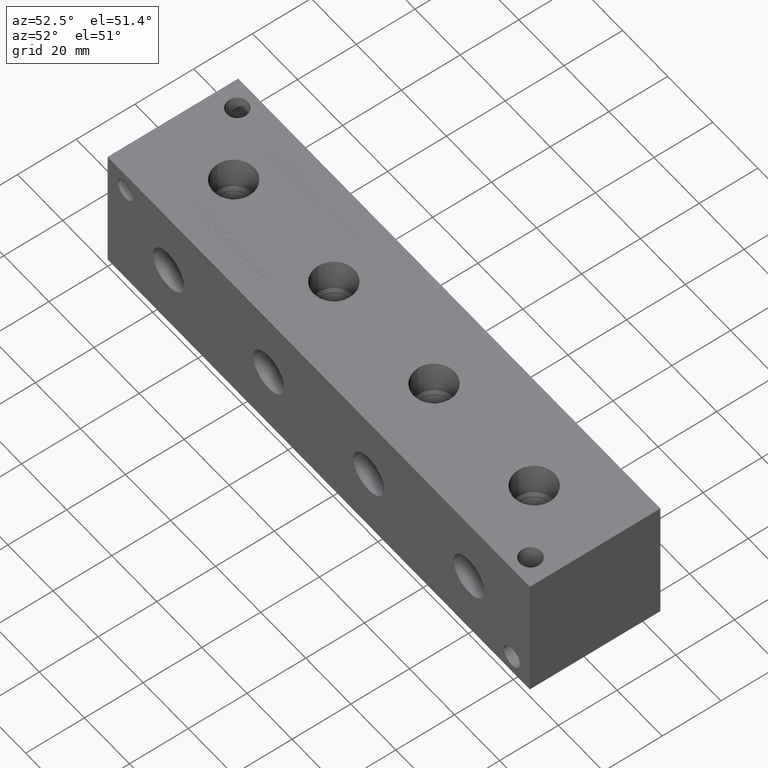
[diagram: clean part render]
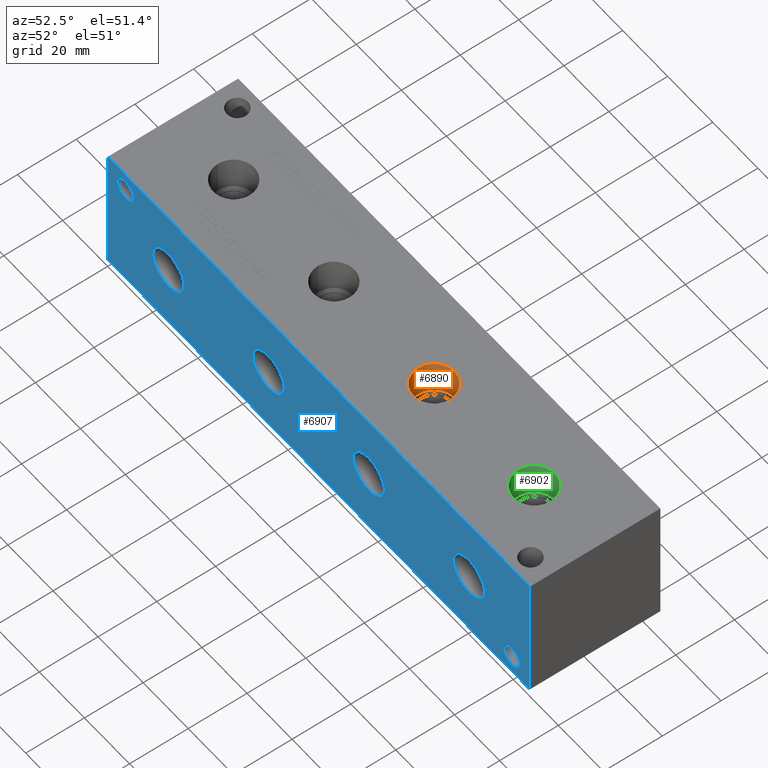
[diagram: same view with three faces highlighted in distinct colors, each labeled with its STEP entity id]
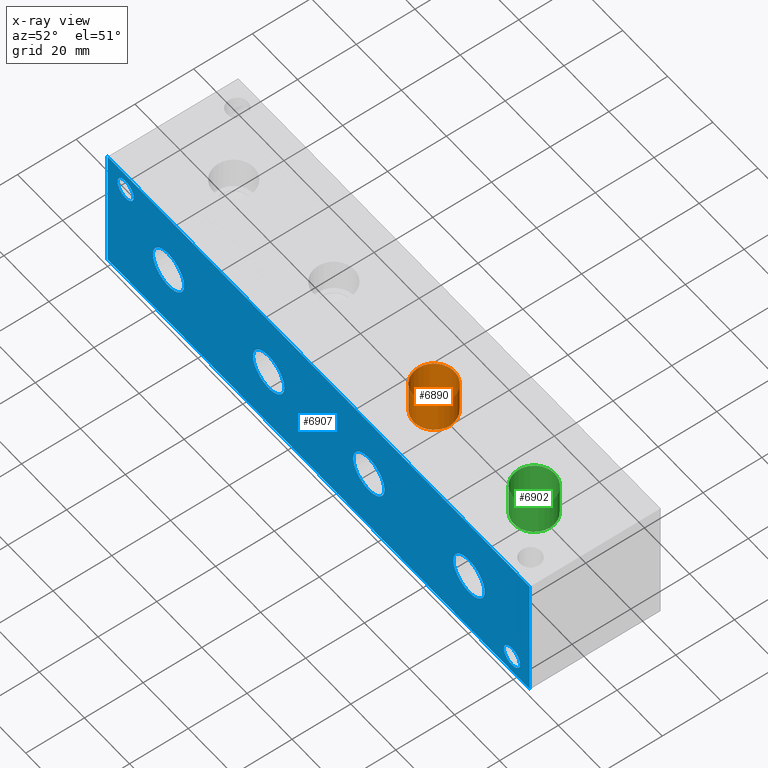
[diagram: x-ray of the same camera — body ghosted, the three highlighted faces saturated]
A machine part, auxiliary view with three faces highlighted in distinct colors.
The next image is the same camera in x-ray (body ghosted, the three faces saturated) — at least one of them is partly hidden behind the body in this view.
Their STEP definitions:

[orange] entity #6890 — the highlighted cylindrical surface (bore or boss wall) has radius 6.9342 mm, axis along (0, 0, 1).
#46=CYLINDRICAL_SURFACE('',#7227,6.9342);
#60=CIRCLE('',#7004,6.9342);
#61=CIRCLE('',#7005,6.9342);
#104=CIRCLE('',#7224,6.9342);
#105=CIRCLE('',#7225,6.9342);
#736=FACE_OUTER_BOUND('',#1127,.T.);
#1127=EDGE_LOOP('',(#6074,#6075,#6076,#6077,#6078,#6079));
#1831=LINE('',#11628,#2521);
#2521=VECTOR('',#8543,6.9342);
#3012=VERTEX_POINT('',#10560);
#3013=VERTEX_POINT('',#10561);
#3327=VERTEX_POINT('',#11621);
#3328=VERTEX_POINT('',#11622);
#3791=EDGE_CURVE('',#3012,#3013,#60,.T.);
#3792=EDGE_CURVE('',#3013,#3012,#61,.T.);
#4257=EDGE_CURVE('',#3327,#3328,#104,.T.);
#4258=EDGE_CURVE('',#3328,#3327,#105,.T.);
#4260=EDGE_CURVE('',#3013,#3328,#1831,.T.);
#6074=ORIENTED_EDGE('',*,*,#3791,.F.);
#6075=ORIENTED_EDGE('',*,*,#3792,.F.);
#6076=ORIENTED_EDGE('',*,*,#4260,.T.);
#6077=ORIENTED_EDGE('',*,*,#4257,.F.);
#6078=ORIENTED_EDGE('',*,*,#4258,.F.);
#6079=ORIENTED_EDGE('',*,*,#4260,.F.);
#6890=ADVANCED_FACE('',(#736),#46,.F.);
#7004=AXIS2_PLACEMENT_3D('',#10562,#7697,#7698);
#7005=AXIS2_PLACEMENT_3D('',#10563,#7699,#7700);
#7224=AXIS2_PLACEMENT_3D('',#11623,#8535,#8536);
#7225=AXIS2_PLACEMENT_3D('',#11624,#8537,#8538);
#7227=AXIS2_PLACEMENT_3D('',#11627,#8541,#8542);
#7697=DIRECTION('center_axis',(0.,0.,-1.));
#7698=DIRECTION('ref_axis',(1.,0.,0.));
#7699=DIRECTION('center_axis',(0.,0.,-1.));
#7700=DIRECTION('ref_axis',(1.,0.,0.));
#8535=DIRECTION('center_axis',(0.,0.,1.));
#8536=DIRECTION('ref_axis',(1.,0.,0.));
#8537=DIRECTION('center_axis',(0.,0.,1.));
#8538=DIRECTION('ref_axis',(1.,0.,0.));
#8541=DIRECTION('center_axis',(0.,0.,1.));
#8542=DIRECTION('ref_axis',(1.,0.,0.));
#8543=DIRECTION('',(0.,0.,-1.));
#10560=CARTESIAN_POINT('',(122.809,22.225,44.45));
#10561=CARTESIAN_POINT('',(108.9406,22.225,44.45));
#10562=CARTESIAN_POINT('Origin',(115.8748,22.225,44.45));
#10563=CARTESIAN_POINT('Origin',(115.8748,22.225,44.45));
#11621=CARTESIAN_POINT('',(122.809,22.225,33.0454));
#11622=CARTESIAN_POINT('',(108.9406,22.225,33.0454));
#11623=CARTESIAN_POINT('Origin',(115.8748,22.225,33.0454));
#11624=CARTESIAN_POINT('Origin',(115.8748,22.225,33.0454));
#11627=CARTESIAN_POINT('Origin',(115.8748,22.225,38.7477));
#11628=CARTESIAN_POINT('',(108.9406,22.225,38.7477));

[blue] entity #6907 — the highlighted planar face has unit normal (0, -1, 0).
#66=CIRCLE('',#7153,3.5687);
#67=CIRCLE('',#7154,3.5687);
#69=CIRCLE('',#7162,3.5687);
#70=CIRCLE('',#7163,3.5687);
#79=CIRCLE('',#7184,6.9342);
#80=CIRCLE('',#7185,6.9342);
#86=CIRCLE('',#7195,6.9342);
#87=CIRCLE('',#7196,6.9342);
#93=CIRCLE('',#7206,6.9342);
#94=CIRCLE('',#7207,6.9342);
#100=CIRCLE('',#7217,6.9342);
#101=CIRCLE('',#7218,6.9342);
#168=FACE_BOUND('',#1150,.T.);
#169=FACE_BOUND('',#1151,.T.);
#170=FACE_BOUND('',#1152,.T.);
#171=FACE_BOUND('',#1153,.T.);
#172=FACE_BOUND('',#1154,.T.);
#173=FACE_BOUND('',#1155,.T.);
#403=PLANE('',#7259);
#753=FACE_OUTER_BOUND('',#1149,.T.);
#1149=EDGE_LOOP('',(#6153,#6154,#6155,#6156));
#1150=EDGE_LOOP('',(#6157,#6158));
#1151=EDGE_LOOP('',(#6159,#6160));
#1152=EDGE_LOOP('',(#6161,#6162));
#1153=EDGE_LOOP('',(#6163,#6164));
#1154=EDGE_LOOP('',(#6165,#6166));
#1155=EDGE_LOOP('',(#6167,#6168));
#1429=LINE('',#10542,#2119);
#1843=LINE('',#11689,#2533);
#1848=LINE('',#11698,#2538);
#1849=LINE('',#11700,#2539);
#2119=VECTOR('',#7681,10.);
#2533=VECTOR('',#8613,10.);
#2538=VECTOR('',#8622,10.);
#2539=VECTOR('',#8625,10.);
#3002=VERTEX_POINT('',#10540);
#3003=VERTEX_POINT('',#10541);
#3280=VERTEX_POINT('',#11482);
#3281=VERTEX_POINT('',#11483);
#3285=VERTEX_POINT('',#11498);
#3286=VERTEX_POINT('',#11499);
#3298=VERTEX_POINT('',#11540);
#3299=VERTEX_POINT('',#11541);
#3306=VERTEX_POINT('',#11562);
#3307=VERTEX_POINT('',#11563);
#3314=VERTEX_POINT('',#11584);
#3315=VERTEX_POINT('',#11585);
#3322=VERTEX_POINT('',#11606);
#3323=VERTEX_POINT('',#11607);
#3349=VERTEX_POINT('',#11687);
#3351=VERTEX_POINT('',#11696);
#3781=EDGE_CURVE('',#3002,#3003,#1429,.T.);
#4190=EDGE_CURVE('',#3280,#3281,#66,.T.);
#4191=EDGE_CURVE('',#3281,#3280,#67,.T.);
#4199=EDGE_CURVE('',#3285,#3286,#69,.T.);
#4200=EDGE_CURVE('',#3286,#3285,#70,.T.);
#4220=EDGE_CURVE('',#3298,#3299,#79,.T.);
#4221=EDGE_CURVE('',#3299,#3298,#80,.T.);
#4230=EDGE_CURVE('',#3306,#3307,#86,.T.);
#4231=EDGE_CURVE('',#3307,#3306,#87,.T.);
#4240=EDGE_CURVE('',#3314,#3315,#93,.T.);
#4241=EDGE_CURVE('',#3315,#3314,#94,.T.);
#4250=EDGE_CURVE('',#3322,#3323,#100,.T.);
#4251=EDGE_CURVE('',#3323,#3322,#101,.T.);
#4287=EDGE_CURVE('',#3349,#3002,#1843,.T.);
#4292=EDGE_CURVE('',#3351,#3003,#1848,.T.);
#4293=EDGE_CURVE('',#3349,#3351,#1849,.T.);
#6153=ORIENTED_EDGE('',*,*,#4293,.T.);
#6154=ORIENTED_EDGE('',*,*,#4292,.T.);
#6155=ORIENTED_EDGE('',*,*,#3781,.F.);
#6156=ORIENTED_EDGE('',*,*,#4287,.F.);
#6157=ORIENTED_EDGE('',*,*,#4190,.T.);
#6158=ORIENTED_EDGE('',*,*,#4191,.T.);
#6159=ORIENTED_EDGE('',*,*,#4199,.T.);
#6160=ORIENTED_EDGE('',*,*,#4200,.T.);
#6161=ORIENTED_EDGE('',*,*,#4220,.T.);
#6162=ORIENTED_EDGE('',*,*,#4221,.T.);
#6163=ORIENTED_EDGE('',*,*,#4230,.T.);
#6164=ORIENTED_EDGE('',*,*,#4231,.T.);
#6165=ORIENTED_EDGE('',*,*,#4240,.T.);
#6166=ORIENTED_EDGE('',*,*,#4241,.T.);
#6167=ORIENTED_EDGE('',*,*,#4250,.T.);
#6168=ORIENTED_EDGE('',*,*,#4251,.T.);
#6907=ADVANCED_FACE('',(#753,#168,#169,#170,#171,#172,#173),#403,.T.);
#7153=AXIS2_PLACEMENT_3D('',#11484,#8372,#8373);
#7154=AXIS2_PLACEMENT_3D('',#11485,#8374,#8375);
#7162=AXIS2_PLACEMENT_3D('',#11500,#8392,#8393);
#7163=AXIS2_PLACEMENT_3D('',#11501,#8394,#8395);
#7184=AXIS2_PLACEMENT_3D('',#11542,#8443,#8444);
#7185=AXIS2_PLACEMENT_3D('',#11543,#8445,#8446);
#7195=AXIS2_PLACEMENT_3D('',#11564,#8468,#8469);
#7196=AXIS2_PLACEMENT_3D('',#11565,#8470,#8471);
#7206=AXIS2_PLACEMENT_3D('',#11586,#8493,#8494);
#7207=AXIS2_PLACEMENT_3D('',#11587,#8495,#8496);
#7217=AXIS2_PLACEMENT_3D('',#11608,#8518,#8519);
#7218=AXIS2_PLACEMENT_3D('',#11609,#8520,#8521);
#7259=AXIS2_PLACEMENT_3D('',#11699,#8623,#8624);
#7681=DIRECTION('',(1.,0.,0.));
#8372=DIRECTION('center_axis',(0.,1.,0.));
#8373=DIRECTION('ref_axis',(1.,0.,0.));
#8374=DIRECTION('center_axis',(0.,1.,0.));
#8375=DIRECTION('ref_axis',(1.,0.,0.));
#8392=DIRECTION('center_axis',(0.,1.,0.));
#8393=DIRECTION('ref_axis',(1.,0.,0.));
#8394=DIRECTION('center_axis',(0.,1.,0.));
#8395=DIRECTION('ref_axis',(1.,0.,0.));
#8443=DIRECTION('center_axis',(0.,1.,0.));
#8444=DIRECTION('ref_axis',(1.,0.,0.));
#8445=DIRECTION('center_axis',(0.,1.,0.));
#8446=DIRECTION('ref_axis',(1.,0.,0.));
#8468=DIRECTION('center_axis',(0.,1.,0.));
#8469=DIRECTION('ref_axis',(1.,0.,0.));
#8470=DIRECTION('center_axis',(0.,1.,0.));
#8471=DIRECTION('ref_axis',(1.,0.,0.));
#8493=DIRECTION('center_axis',(0.,1.,0.));
#8494=DIRECTION('ref_axis',(1.,0.,0.));
#8495=DIRECTION('center_axis',(0.,1.,0.));
#8496=DIRECTION('ref_axis',(1.,0.,0.));
#8518=DIRECTION('center_axis',(0.,1.,0.));
#8519=DIRECTION('ref_axis',(1.,0.,0.));
#8520=DIRECTION('center_axis',(0.,1.,0.));
#8521=DIRECTION('ref_axis',(1.,0.,0.));
#8613=DIRECTION('',(0.,0.,1.));
#8622=DIRECTION('',(0.,0.,1.));
#8623=DIRECTION('center_axis',(0.,-1.,0.));
#8624=DIRECTION('ref_axis',(1.,0.,0.));
#8625=DIRECTION('',(1.,0.,0.));
#10540=CARTESIAN_POINT('',(0.,0.,44.45));
#10541=CARTESIAN_POINT('',(187.325,0.,44.45));
#10542=CARTESIAN_POINT('',(0.,0.,44.45));
#11482=CARTESIAN_POINT('',(11.4935,0.,38.1));
#11483=CARTESIAN_POINT('',(4.3561,0.,38.1));
#11484=CARTESIAN_POINT('Origin',(7.9248,0.,38.1));
#11485=CARTESIAN_POINT('Origin',(7.9248,0.,38.1));
#11498=CARTESIAN_POINT('',(182.9435,0.,6.35));
#11499=CARTESIAN_POINT('',(175.8061,0.,6.35));
#11500=CARTESIAN_POINT('Origin',(179.3748,0.,6.35));
#11501=CARTESIAN_POINT('Origin',(179.3748,0.,6.35));
#11540=CARTESIAN_POINT('',(122.809,0.,22.225));
#11541=CARTESIAN_POINT('',(108.9406,0.,22.225));
#11542=CARTESIAN_POINT('Origin',(115.8748,0.,22.225));
#11543=CARTESIAN_POINT('Origin',(115.8748,0.,22.225));
#11562=CARTESIAN_POINT('',(33.909,0.,22.225));
#11563=CARTESIAN_POINT('',(20.0406,0.,22.225));
#11564=CARTESIAN_POINT('Origin',(26.9748,0.,22.225));
#11565=CARTESIAN_POINT('Origin',(26.9748,0.,22.225));
#11584=CARTESIAN_POINT('',(78.359,0.,22.225));
#11585=CARTESIAN_POINT('',(64.4906,0.,22.225));
#11586=CARTESIAN_POINT('Origin',(71.4248,0.,22.225));
#11587=CARTESIAN_POINT('Origin',(71.4248,0.,22.225));
#11606=CARTESIAN_POINT('',(167.259,0.,22.225));
#11607=CARTESIAN_POINT('',(153.3906,0.,22.225));
#11608=CARTESIAN_POINT('Origin',(160.3248,0.,22.225));
#11609=CARTESIAN_POINT('Origin',(160.3248,0.,22.225));
#11687=CARTESIAN_POINT('',(0.,0.,0.));
#11689=CARTESIAN_POINT('',(0.,0.,0.));
#11696=CARTESIAN_POINT('',(187.325,0.,0.));
#11698=CARTESIAN_POINT('',(187.325,0.,0.));
#11699=CARTESIAN_POINT('Origin',(0.,0.,0.));
#11700=CARTESIAN_POINT('',(0.,0.,0.));

[green] entity #6902 — the highlighted cylindrical surface (bore or boss wall) has radius 6.9342 mm, axis along (0, 0, 1).
#52=CYLINDRICAL_SURFACE('',#7254,6.9342);
#54=CIRCLE('',#6998,6.9342);
#55=CIRCLE('',#6999,6.9342);
#119=CIRCLE('',#7251,6.9342);
#120=CIRCLE('',#7252,6.9342);
#748=FACE_OUTER_BOUND('',#1142,.T.);
#1142=EDGE_LOOP('',(#6128,#6129,#6130,#6131,#6132,#6133));
#1840=LINE('',#11682,#2530);
#2530=VECTOR('',#8606,6.9342);
#3006=VERTEX_POINT('',#10548);
#3007=VERTEX_POINT('',#10549);
#3345=VERTEX_POINT('',#11675);
#3346=VERTEX_POINT('',#11676);
#3785=EDGE_CURVE('',#3006,#3007,#54,.T.);
#3786=EDGE_CURVE('',#3007,#3006,#55,.T.);
#4281=EDGE_CURVE('',#3345,#3346,#119,.T.);
#4282=EDGE_CURVE('',#3346,#3345,#120,.T.);
#4284=EDGE_CURVE('',#3007,#3346,#1840,.T.);
#6128=ORIENTED_EDGE('',*,*,#3785,.F.);
#6129=ORIENTED_EDGE('',*,*,#3786,.F.);
#6130=ORIENTED_EDGE('',*,*,#4284,.T.);
#6131=ORIENTED_EDGE('',*,*,#4281,.F.);
#6132=ORIENTED_EDGE('',*,*,#4282,.F.);
#6133=ORIENTED_EDGE('',*,*,#4284,.F.);
#6902=ADVANCED_FACE('',(#748),#52,.F.);
#6998=AXIS2_PLACEMENT_3D('',#10550,#7685,#7686);
#6999=AXIS2_PLACEMENT_3D('',#10551,#7687,#7688);
#7251=AXIS2_PLACEMENT_3D('',#11677,#8598,#8599);
#7252=AXIS2_PLACEMENT_3D('',#11678,#8600,#8601);
#7254=AXIS2_PLACEMENT_3D('',#11681,#8604,#8605);
#7685=DIRECTION('center_axis',(0.,0.,-1.));
#7686=DIRECTION('ref_axis',(1.,0.,0.));
#7687=DIRECTION('center_axis',(0.,0.,-1.));
#7688=DIRECTION('ref_axis',(1.,0.,0.));
#8598=DIRECTION('center_axis',(0.,0.,1.));
#8599=DIRECTION('ref_axis',(1.,0.,0.));
#8600=DIRECTION('center_axis',(0.,0.,1.));
#8601=DIRECTION('ref_axis',(1.,0.,0.));
#8604=DIRECTION('center_axis',(0.,0.,1.));
#8605=DIRECTION('ref_axis',(1.,0.,0.));
#8606=DIRECTION('',(0.,0.,-1.));
#10548=CARTESIAN_POINT('',(167.259,22.225,44.45));
#10549=CARTESIAN_POINT('',(153.3906,22.225,44.45));
#10550=CARTESIAN_POINT('Origin',(160.3248,22.225,44.45));
#10551=CARTESIAN_POINT('Origin',(160.3248,22.225,44.45));
#11675=CARTESIAN_POINT('',(167.259,22.225,33.0454));
#11676=CARTESIAN_POINT('',(153.3906,22.225,33.0454));
#11677=CARTESIAN_POINT('Origin',(160.3248,22.225,33.0454));
#11678=CARTESIAN_POINT('Origin',(160.3248,22.225,33.0454));
#11681=CARTESIAN_POINT('Origin',(160.3248,22.225,38.7477));
#11682=CARTESIAN_POINT('',(153.3906,22.225,38.7477));